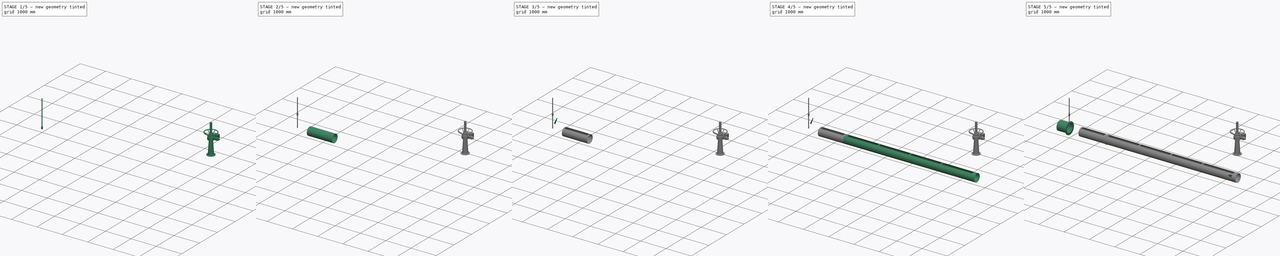
[diagram: build sequence overview — one tinted view per stage of 5, left to right]
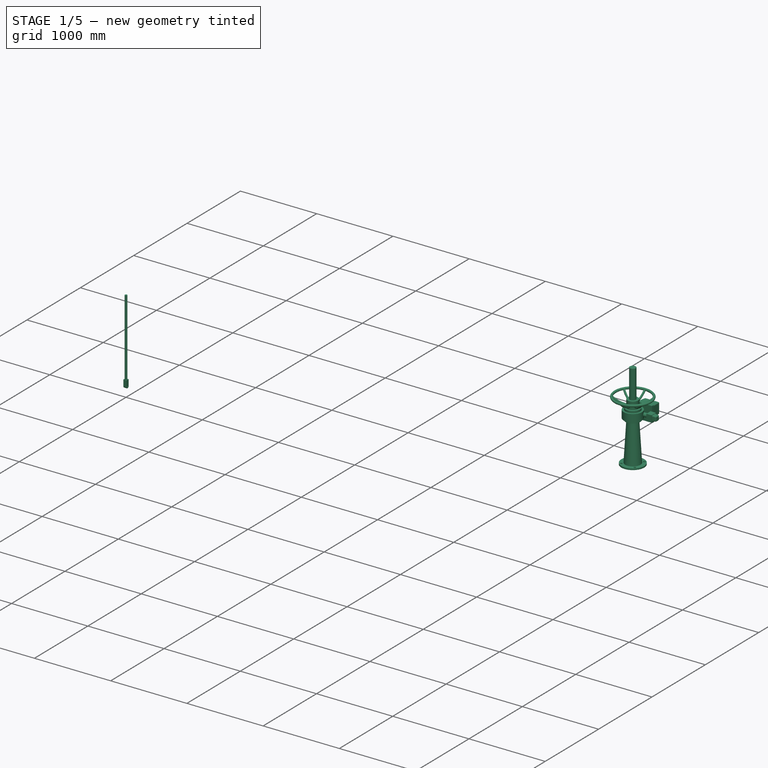
[diagram: stage 1 of 5 — iso view after this stage's code; geometry added in this stage tinted green]
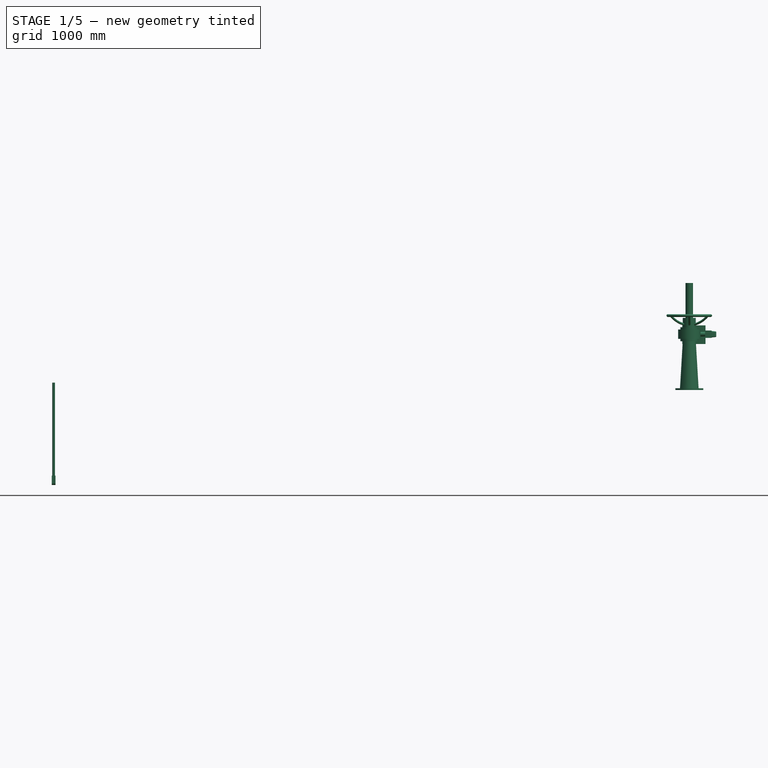
[diagram: stage 1 of 5 — front view after this stage's code; geometry added in this stage tinted green]
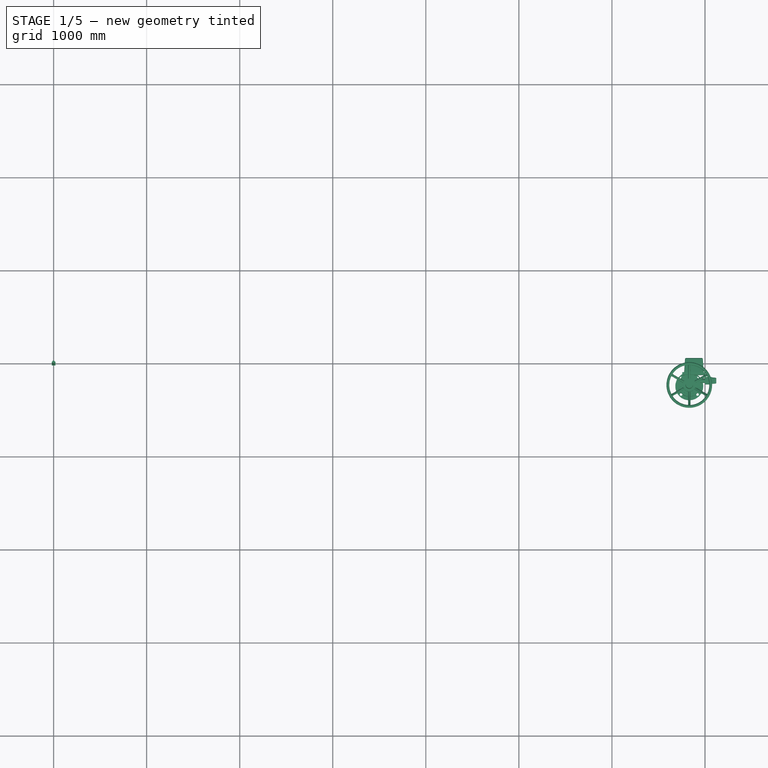
[diagram: stage 1 of 5 — top view after this stage's code; geometry added in this stage tinted green]
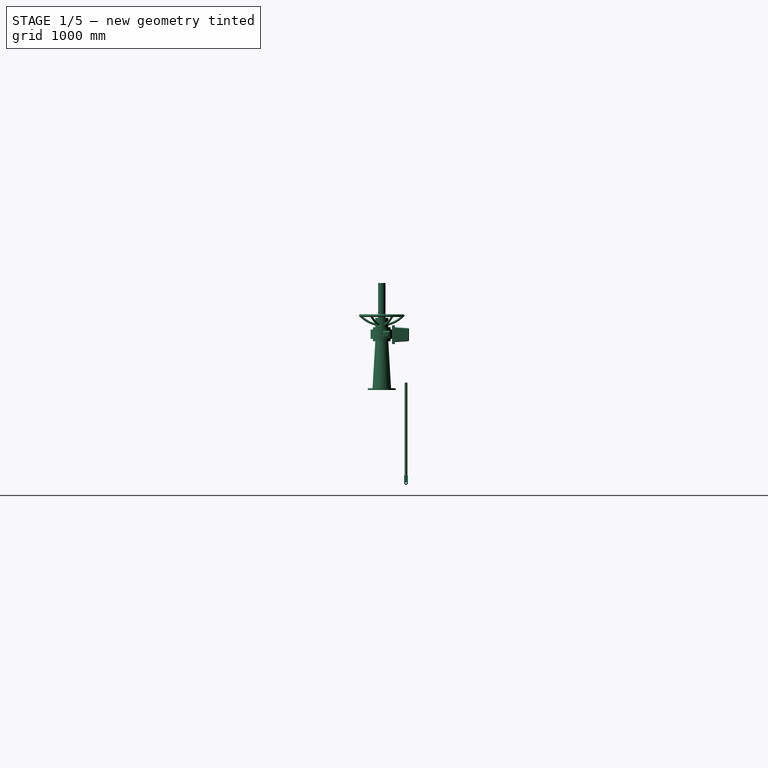
[diagram: stage 1 of 5 — right view after this stage's code; geometry added in this stage tinted green]
FCSTD DOCUMENT  (FreeCAD 1.0R39109 (Git))
Label: pipeSkimmer
License: All rights reserved
LicenseURL: https://en.wikipedia.org/wiki/All_rights_reserved
objects: Part::Extrusion×9, Sketcher::SketchObject×9, App::Part×8, Part::FeaturePython×6, Part::Cut×4, Part::Compound×2, Part::Revolution×1, Spreadsheet::Sheet×1, Part::Feature×1, Part::Cylinder×1
note: 41 computed .brp shape members not serialized (recipe doc carries the construction recipe); baked Part::Feature solids carry a one-line shape summary decoded from their .brp

FEATURE [Part::Feature] Part__Feature  label="電動トップハンドル_LTKD-01 v5"
  Placement = pos=(0,-389.711,-5.7e-14) rot=(1,0,0;1.5708rad)
  shape: bbox 555.2 x 557.2 x 1150 mm, 73 faces (baked)
FEATURE [App::Part] Part004  label="開閉台"
  Group = -> [Part__Feature]
  Origin = -> Origin004
  Placement = pos=(0,-400,0) rot=(0,0,1;3.14159rad)
FEATURE [Sketcher::SketchObject] Sketch006
  ArcFitTolerance = 0
  FullyConstrained = false
  MakeInternals = false
  Placement = pos=(0,0,0) rot=(0.57735,0.57735,0.57735;2.0944rad)
  sketch-geometry (5):
    g0: Circle CenterX=0 CenterY=0 CenterZ=0 NormalX=0 NormalY=0 NormalZ=1 AngleXU=0 Radius=7.5
    g1: ArcOfCircle CenterX=0 CenterY=0 CenterZ=0 NormalX=0 NormalY=0 NormalZ=1 AngleXU=0 Radius=20 StartAngle=3.14159 EndAngle=6.28319
    g2: LineSegment StartX=-20 StartY=9.32106e-06 StartZ=0 EndX=-20 EndY=80 EndZ=0
    g3: LineSegment StartX=-20 StartY=80 StartZ=0 EndX=20 EndY=80 EndZ=0
    g4: LineSegment StartX=20 StartY=80 StartZ=0 EndX=20 EndY=3.56439e-05 EndZ=0
  constraints (13):
    c: Coincident(g0,g-1)
    c: Coincident(g1,g0)
    c: Radius(g1) = 20
    c: Radius(g0) = 7.5
    c: Vertical(g2)
    c: Coincident(g2,g3)
    c: Horizontal(g3)
    c: Coincident(g3,g4)
    c: Vertical(g4)
    c: Coincident(g1,g4)
    c: Coincident(g1,g2)
    c: DistanceY(g-1,g3) = 80
    c: DistanceX(g3,g3) = 40
FEATURE [Part::Extrusion] Extrude006
  Base = -> Sketch006
  Dir = (1,0,0)
  DirMode = 2
  FaceMakerClass = Part::FaceMakerBullseye
  FaceMakerMode = 3
  LengthFwd = 40
  LengthRev = 0
  Solid = true
  Symmetric = true
FEATURE [App::Part] Part005  label="rod"
  Group = -> [Cut002,Clone,Sketch007,Sketch006,Sketch008,Extrude006,Extrude007,Extrude008]
  Origin = -> Origin005
  Placement = pos=(6831,-303,175) rot=(1,0,0;6.17882rad)
  expr: .Placement.Base.x = Spreadsheet.L0 - Spreadsheet.l2 + Spreadsheet.l4 - 19
FEATURE [Sketcher::SketchObject] Sketch009
  ArcFitTolerance = 0
  FullyConstrained = false
  MakeInternals = false
  Placement = pos=(0,0,0) rot=(0.57735,0.57735,0.57735;2.0944rad)
  sketch-geometry (5):
    g0: Circle CenterX=0 CenterY=0 CenterZ=0 NormalX=0 NormalY=0 NormalZ=1 AngleXU=0 Radius=7.5
    g1: ArcOfCircle CenterX=0 CenterY=0 CenterZ=0 NormalX=0 NormalY=0 NormalZ=1 AngleXU=0 Radius=20 StartAngle=3.14864 EndAngle=6.2925
    g2: LineSegment StartX=-19.9995 StartY=-0.141043 StartZ=0 EndX=-19.9995 EndY=80 EndZ=0
    g3: LineSegment StartX=-19.9995 StartY=80 StartZ=0 EndX=19.9991 EndY=80 EndZ=0
    g4: LineSegment StartX=19.9991 StartY=80 StartZ=0 EndX=19.9991 EndY=0.186233 EndZ=0
  constraints (12):
    c: Coincident(g0,g-1)
    c: Coincident(g1,g0)
    c: Vertical(g2)
    c: Coincident(g2,g3)
    c: Horizontal(g3)
    c: Coincident(g3,g4)
    c: Vertical(g4)
    c: Coincident(g1,g4)
    c: Coincident(g1,g2)
    c: Radius(g0) = 7.5
    c: Radius(g1) = 20
    c: DistanceY(g-1,g3) = 80
FEATURE [Part::Extrusion] Extrude009
  Base = -> Sketch009
  Dir = (1,0,0)
  DirMode = 2
  FaceMakerClass = Part::FaceMakerBullseye
  FaceMakerMode = 3
  LengthFwd = 9
  LengthRev = 0
  Solid = true
  Symmetric = true
FEATURE [Part::Cylinder] Cylinder  label="円柱"
  Angle = 360
  AttacherType = Attacher::AttachEngine3D
  FirstAngle = 0
  Height = 1000
  Placement = pos=(0,0,80) rot=(0,0,1;0rad)
  Radius = 15
  SecondAngle = 0
  expr: Height = Spreadsheet.h2
FEATURE [App::Part] Part006  label="rod002"
  Group = -> [Sketch009,Cylinder,Extrude009]
  Origin = -> Origin006
  Placement = pos=(6831,-250,682) rot=(0,0,1;0rad)
  expr: .Placement.Base.x = Spreadsheet.L0 - Spreadsheet.l2 + Spreadsheet.l4 - 19
FEATURE [Part::Compound] Compound003  label="開閉台01"
  Links = -> [Part004]
  Placement = pos=(6831,-250,1000) rot=(0.999778,-0.016584,0;2e-06rad)
  expr: .Placement.Base.x = Spreadsheet.L0 - Spreadsheet.l2 + Spreadsheet.l4 - 19
  expr: .Placement.Base.z = Spreadsheet.h2
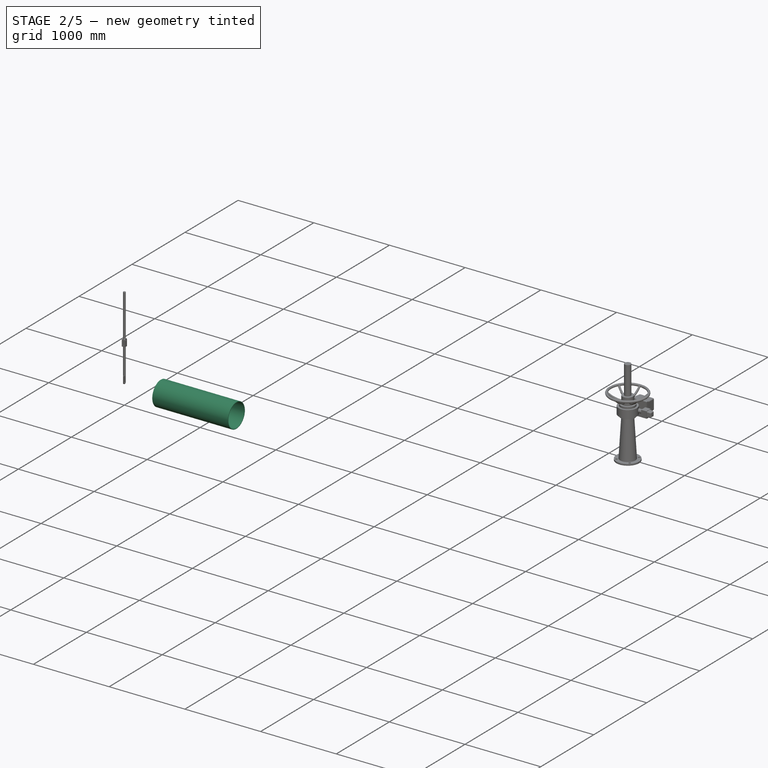
[diagram: stage 2 of 5 — iso view after this stage's code; geometry added in this stage tinted green]
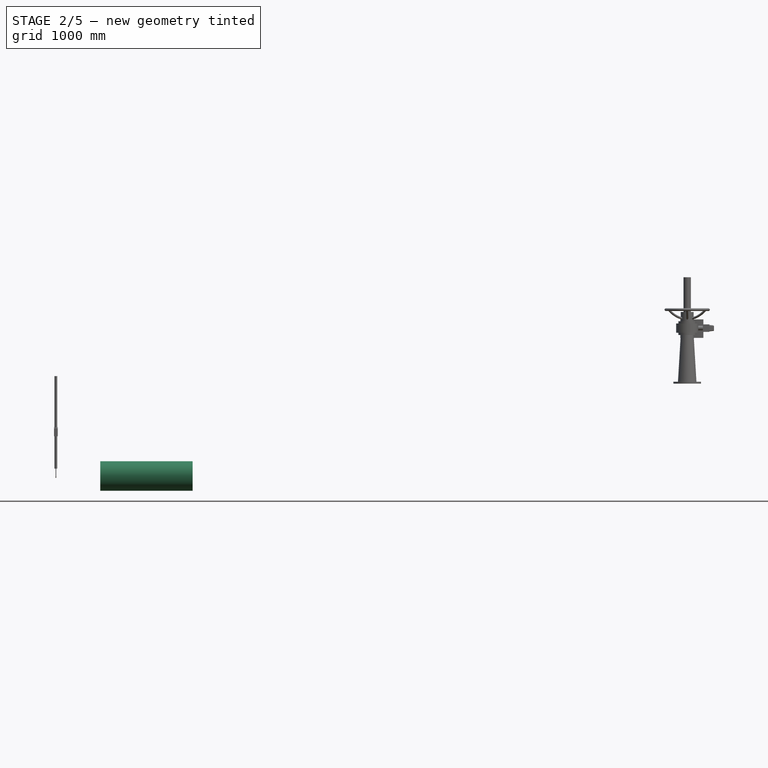
[diagram: stage 2 of 5 — front view after this stage's code; geometry added in this stage tinted green]
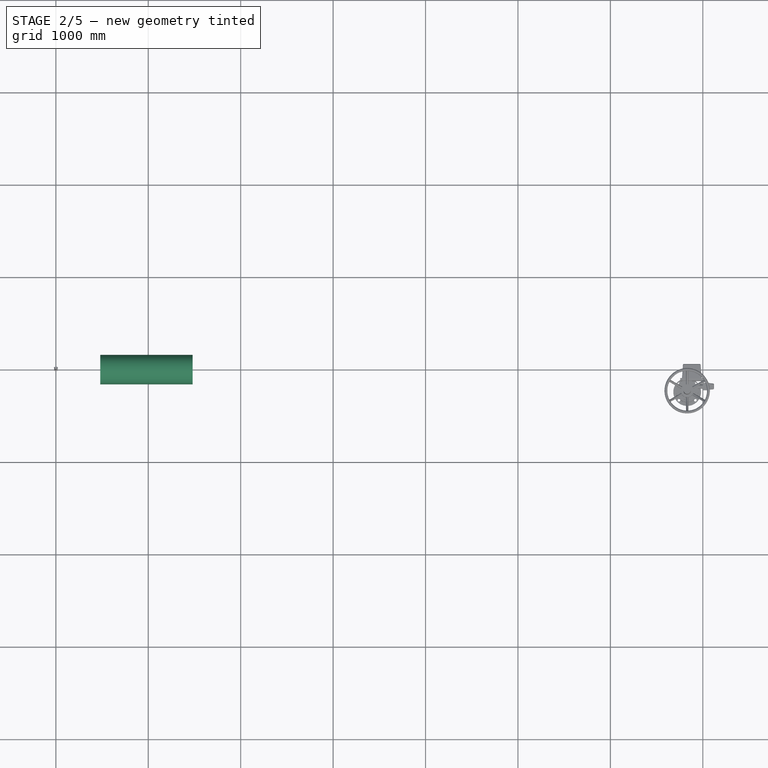
[diagram: stage 2 of 5 — top view after this stage's code; geometry added in this stage tinted green]
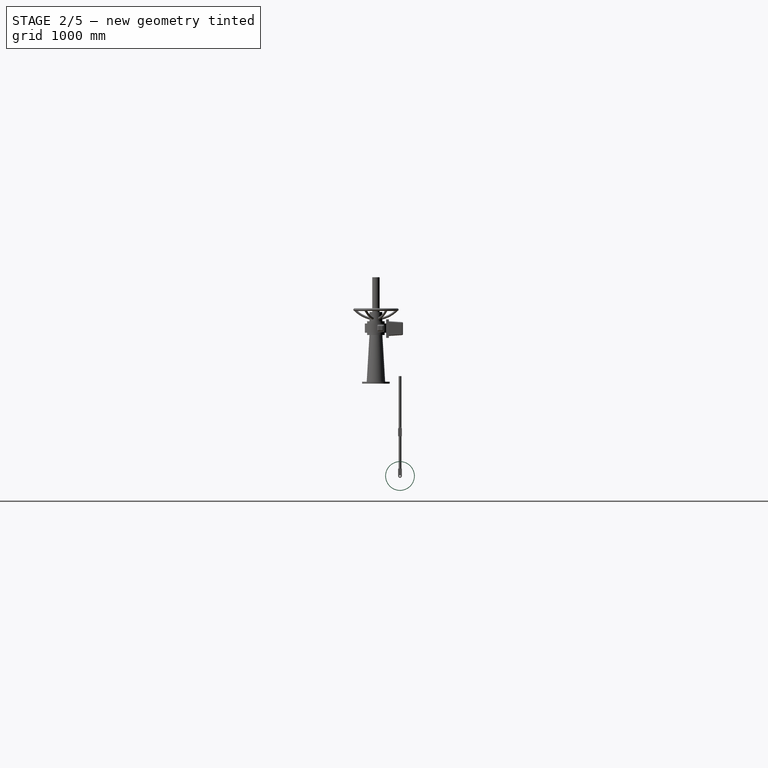
[diagram: stage 2 of 5 — right view after this stage's code; geometry added in this stage tinted green]
FEATURE [Sketcher::SketchObject] Sketch007
  ArcFitTolerance = 0
  ExternalGeometry = -> [Extrude006]
  FullyConstrained = false
  MakeInternals = false
  MapMode = 5
  Placement = pos=(0,-20,0) rot=(1,0,0;1.5708rad)
  sketch-geometry (4):
    g0: LineSegment StartX=-5 StartY=-25.0355 StartZ=0 EndX=5 EndY=-25.0355 EndZ=0
    g1: LineSegment StartX=5 StartY=-25.0355 StartZ=0 EndX=5 EndY=60 EndZ=0
    g2: LineSegment StartX=5 StartY=60 StartZ=0 EndX=-5 EndY=60 EndZ=0
    g3: LineSegment StartX=-5 StartY=60 StartZ=0 EndX=-5 EndY=-25.0355 EndZ=0
  constraints (11):
    c: Coincident(g0,g1)
    c: Coincident(g1,g2)
    c: Coincident(g2,g3)
    c: Coincident(g3,g0)
    c: Horizontal(g0)
    c: Horizontal(g2)
    c: Vertical(g1)
    c: Vertical(g3)
    c: Distance(g1,g-3) = 20
    c: DistanceX(g0,g0) = 10
    c: DistanceX(g0,g-1) = 5
FEATURE [Part::Extrusion] Extrude007
  Base = -> Sketch007
  Dir = (0,-1,2e-16)
  DirMode = 2
  FaceMakerClass = Part::FaceMakerBullseye
  FaceMakerMode = 3
  LengthFwd = 50
  LengthRev = 0
  Reversed = true
  Solid = true
  Symmetric = false
FEATURE [Part::Cut] Cut002
  Base = -> Extrude006
  Tool = -> Extrude007
FEATURE [Sketcher::SketchObject] Sketch008
  ArcFitTolerance = 0
  FullyConstrained = true
  MakeInternals = false
  MapMode = 5
  Placement = pos=(0,0,80) rot=(0,0,1;0rad)
  sketch-geometry (1):
    g0: Circle CenterX=0 CenterY=0 CenterZ=0 NormalX=0 NormalY=0 NormalZ=1 AngleXU=0 Radius=15
  constraints (2):
    c: Coincident(g0,g-1)
    c: Radius(g0) = 15
FEATURE [Part::Extrusion] Extrude008
  Base = -> Sketch008
  Dir = (0,0,1)
  DirMode = 2
  FaceMakerClass = Part::FaceMakerBullseye
  FaceMakerMode = 3
  LengthFwd = 350
  LengthRev = 0
  Solid = true
  Symmetric = false
FEATURE [Part::FeaturePython] Clone  label="Cut003"  # Draft clone (typed FeaturePython)
  AttacherType = Attacher::AttachEngine3D
  Fuse = false
  Objects = -> [Cut002]
  Placement = pos=(-1.83e-13,0,510) rot=(0,1,0;3.14159rad)
  Scale = (1,1,1)
FEATURE [Part::FeaturePython] Straight_tube001  # WARN: FeaturePython — macro-defined, semantics opaque (R4)
  L = 1000
  Placement = pos=(1480,0,0) rot=(0,0,1;3.14159rad)
  dia = 16
  fittings = 05_Straight pipe
  material = 0
  standard = 0
  expr: .Placement.Base.x = Spreadsheet.l4 - 320
  expr: L = Spreadsheet.l1
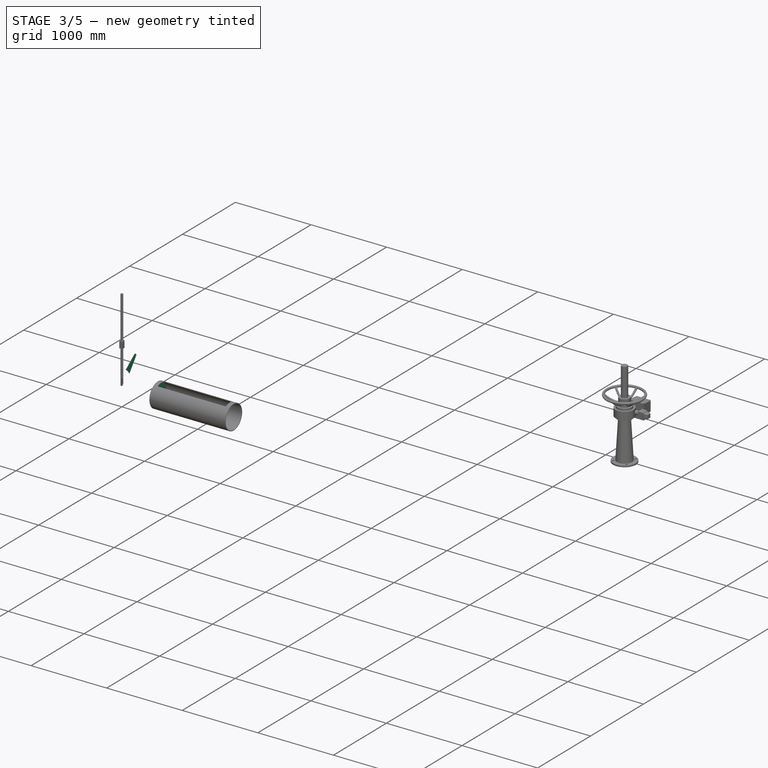
[diagram: stage 3 of 5 — iso view after this stage's code; geometry added in this stage tinted green]
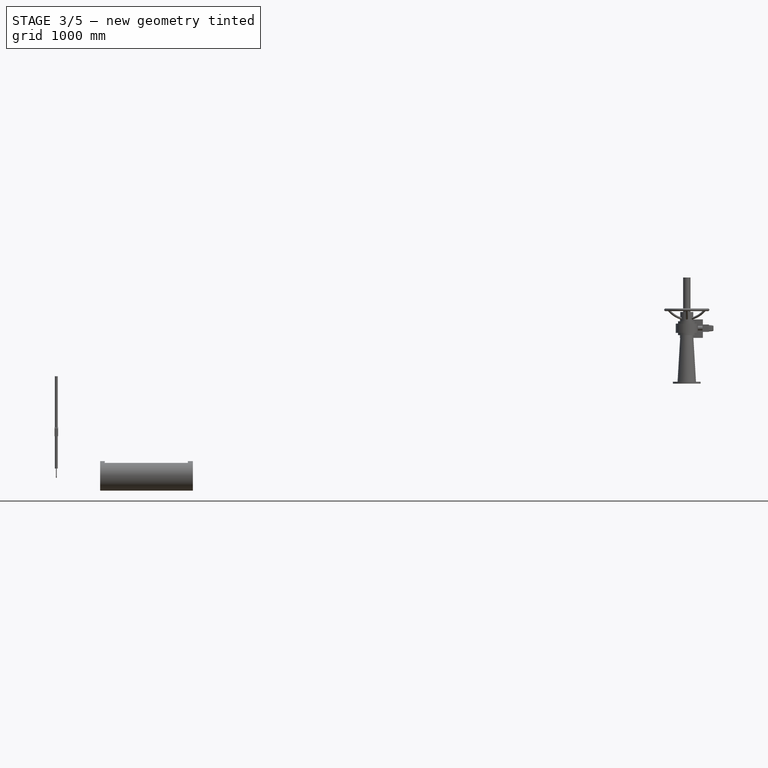
[diagram: stage 3 of 5 — front view after this stage's code; geometry added in this stage tinted green]
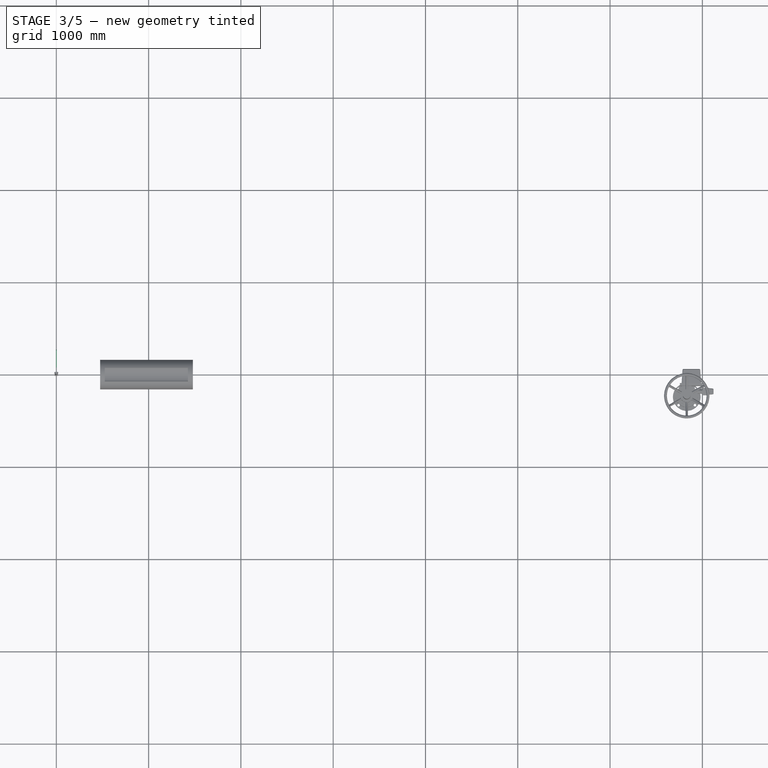
[diagram: stage 3 of 5 — top view after this stage's code; geometry added in this stage tinted green]
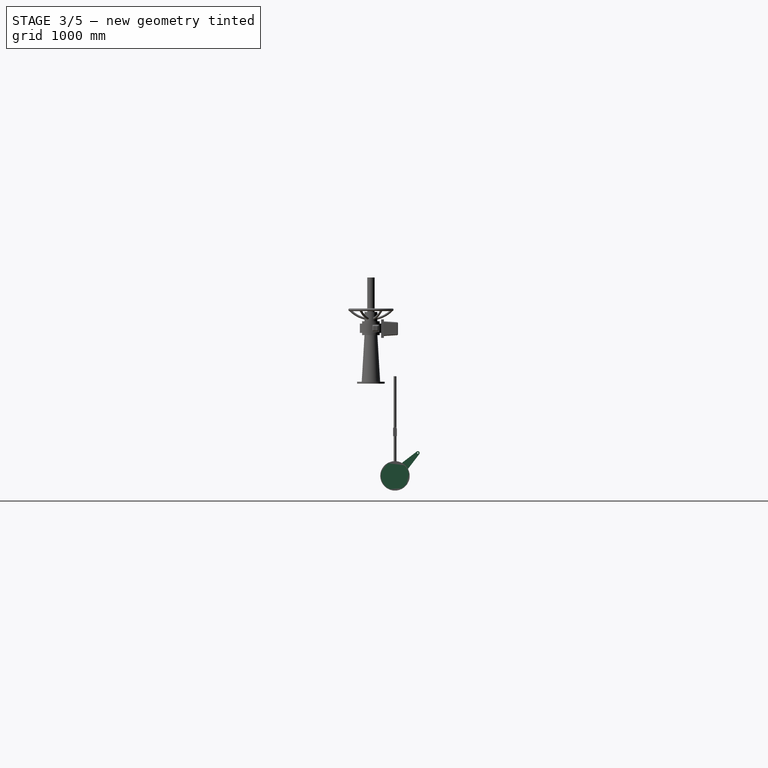
[diagram: stage 3 of 5 — right view after this stage's code; geometry added in this stage tinted green]
FEATURE [Sketcher::SketchObject] Sketch002
  ArcFitTolerance = 0
  FullyConstrained = false
  MakeInternals = false
  Placement = pos=(-30,0,0) rot=(0.57735,0.57735,0.57735;2.0944rad)
  expr: .Placement.Base.x = -30
  sketch-geometry (3):
    g0: LineSegment StartX=0 StartY=0 StartZ=0 EndX=-124.513 EndY=239.188 EndZ=0
    g1: LineSegment StartX=0 StartY=0 StartZ=0 EndX=124.513 EndY=239.188 EndZ=0
    g2: ArcOfCircle CenterX=0 CenterY=0 CenterZ=0 NormalX=0 NormalY=0 NormalZ=1 AngleXU=0 Radius=269.656 StartAngle=1.09083 EndAngle=2.05076
  constraints (7):
    c: Coincident(g0,g-1)
    c: Coincident(g1,g0)
    c: Coincident(g2,g1)
    c: Coincident(g2,g0)
    c: Coincident(g2,g0)
    c: Angle(g1,g0) = 0.959931
    c: Angle(g1,g-2) = 0.479966
FEATURE [Part::Extrusion] Extrude002
  Base = -> Sketch002
  Dir = (1,0,0)
  DirMode = 2
  FaceMakerClass = Part::FaceMakerBullseye
  FaceMakerMode = 3
  LengthFwd = 900
  LengthRev = 0
  Placement = pos=(1455,0,0) rot=(0,0,1;0rad)
  Reversed = true
  Solid = true
  Symmetric = false
  expr: .Placement.Base.x = -25 + Spreadsheet.l4 - 320
  expr: LengthFwd = Spreadsheet.l1 - 100
FEATURE [Sketcher::SketchObject] Sketch004
  ArcFitTolerance = 0
  FullyConstrained = true
  MakeInternals = false
  Placement = pos=(0,0,0) rot=(0.57735,0.57735,0.57735;2.0944rad)
  sketch-geometry (6):
    g0: LineSegment [constr] StartX=0 StartY=0 StartZ=0 EndX=247.487 EndY=247.487 EndZ=0
    g1: Circle CenterX=247.487 CenterY=247.487 CenterZ=0 NormalX=0 NormalY=0 NormalZ=1 AngleXU=0 Radius=7.5
    g2: ArcOfCircle CenterX=247.487 CenterY=247.487 CenterZ=0 NormalX=0 NormalY=0 NormalZ=1 AngleXU=0 Radius=20 StartAngle=5.62869 EndAngle=8.50848
    g3: LineSegment StartX=235.312 StartY=263.354 StartZ=0 EndX=74.8903 EndY=140.258 EndZ=0
    g4: LineSegment StartX=263.354 StartY=235.312 StartZ=0 EndX=140.258 EndY=74.8903 EndZ=0
    g5: ArcOfCircle CenterX=0 CenterY=0 CenterZ=0 NormalX=0 NormalY=0 NormalZ=1 AngleXU=0 Radius=159 StartAngle=0.490434 EndAngle=1.08036
  constraints (15):
    c: Coincident(g0,g-1)
    c: Angle(g-1,g0) = 0.785398
    c: Coincident(g1,g0)
    c: Radius(g1) = 7.5
    c: Coincident(g2,g1)
    c: Coincident(g5,g3)
    c: Coincident(g5,g4)
    c: Coincident(g5,g0)
    c: Tangent(g2,g3) = -1.5708
    c: Tangent(g2,g4) = 1.5708
    c: Equal(g4,g3)
    c: Radius(g5) = 159
    c: Angle(g3,g4) = 0.261799
    c: Distance(g5,g1) = 350
    c: Radius(g2) = 20
FEATURE [Part::Extrusion] Extrude004
  Base = -> Sketch004
  Dir = (1,0,0)
  DirMode = 2
  FaceMakerClass = Part::FaceMakerBullseye
  FaceMakerMode = 3
  LengthFwd = 6
  LengthRev = 0
  Placement = pos=(0,0,0) rot=(0,-0.977851,0.209302;0rad)
  Solid = true
  Symmetric = true
FEATURE [App::Part] Part003  label="arm"
  Group = -> [Sketch004,Extrude004]
  Origin = -> Origin003
  Placement = pos=(6520,0,0) rot=(1,0,0;1.8326rad)
  expr: .Placement.Base.x = Spreadsheet.L0 - Spreadsheet.l2 + Spreadsheet.l4 - 330
FEATURE [Sketcher::SketchObject] Sketch005
  ArcFitTolerance = 0
  FullyConstrained = false
  MakeInternals = false
  MapMode = 5
  Placement = pos=(781,0,0) rot=(0.57735,-0.57735,-0.57735;2.0944rad)
  expr: .Placement.Base.x = -Spreadsheet.l1 + Spreadsheet.l4 - 19
  sketch-geometry (1):
    g0: Circle CenterX=0 CenterY=0 CenterZ=0 NormalX=0 NormalY=0 NormalZ=1 AngleXU=0 Radius=159.25
  constraints (1):
    c: Coincident(g0,g-1)
FEATURE [Part::Extrusion] Extrude005
  Base = -> Sketch005
  Dir = (-1,0,0)
  DirMode = 2
  FaceMakerClass = Part::FaceMakerBullseye
  FaceMakerMode = 3
  LengthFwd = 6
  LengthRev = 0
  Placement = pos=(-300,0,0) rot=(0,0,1;0rad)
  Solid = true
  Symmetric = false
  expr: .Placement.Base.x = -300
FEATURE [Part::Cut] Cut003  label="Cut004"
  Base = -> Straight_tube001
  Refine = true
  Tool = -> Extrude002
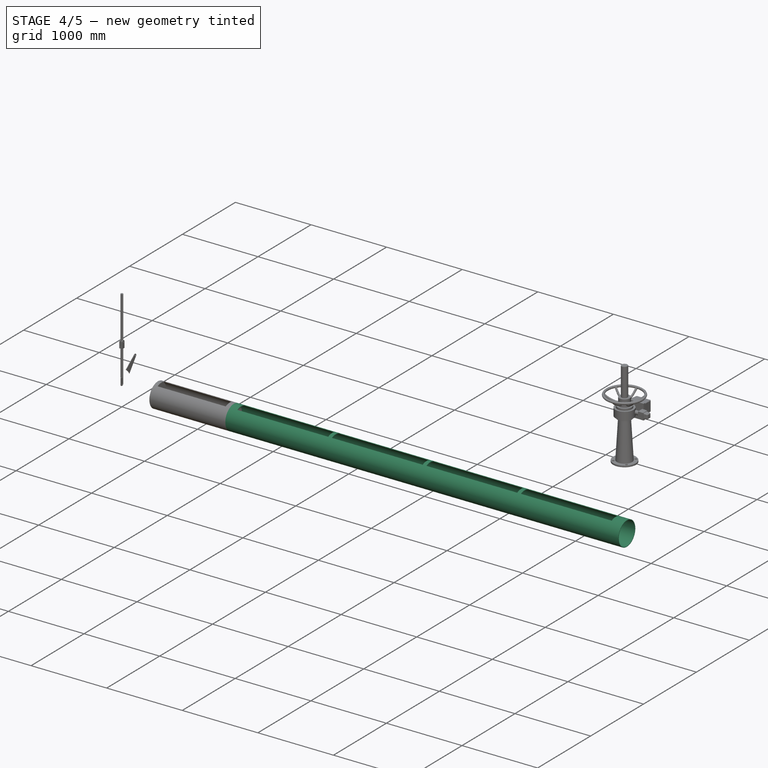
[diagram: stage 4 of 5 — iso view after this stage's code; geometry added in this stage tinted green]
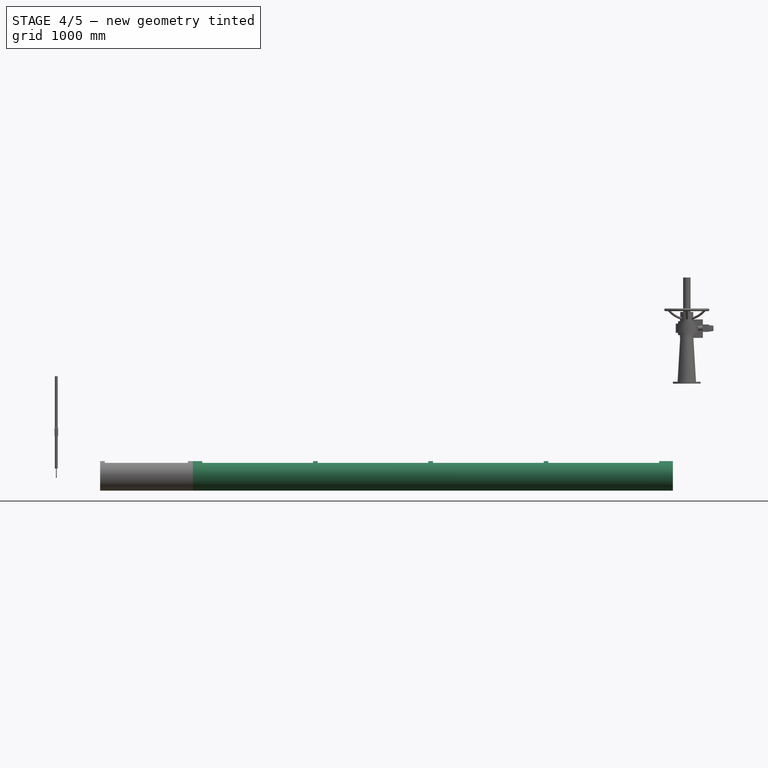
[diagram: stage 4 of 5 — front view after this stage's code; geometry added in this stage tinted green]
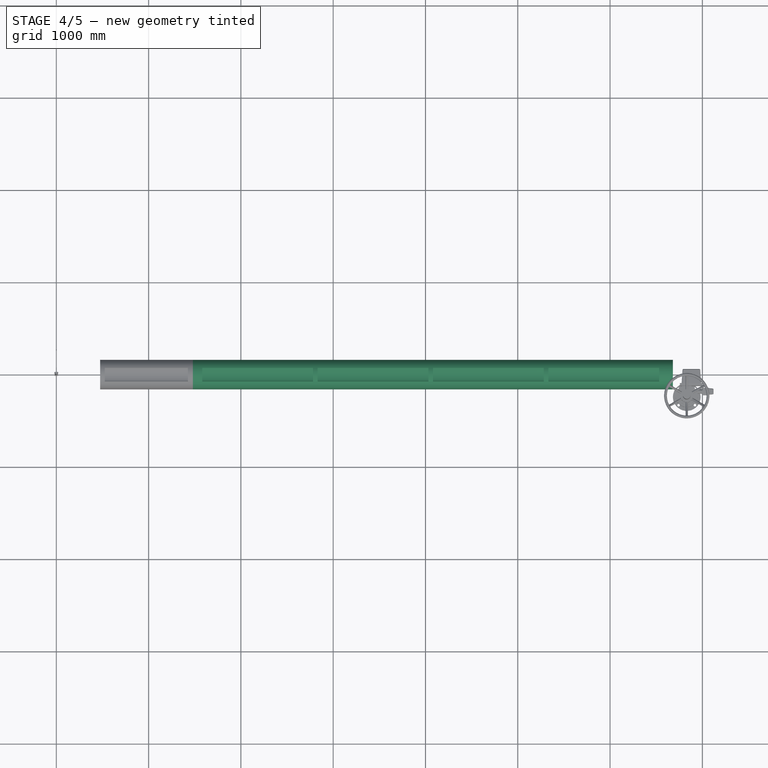
[diagram: stage 4 of 5 — top view after this stage's code; geometry added in this stage tinted green]
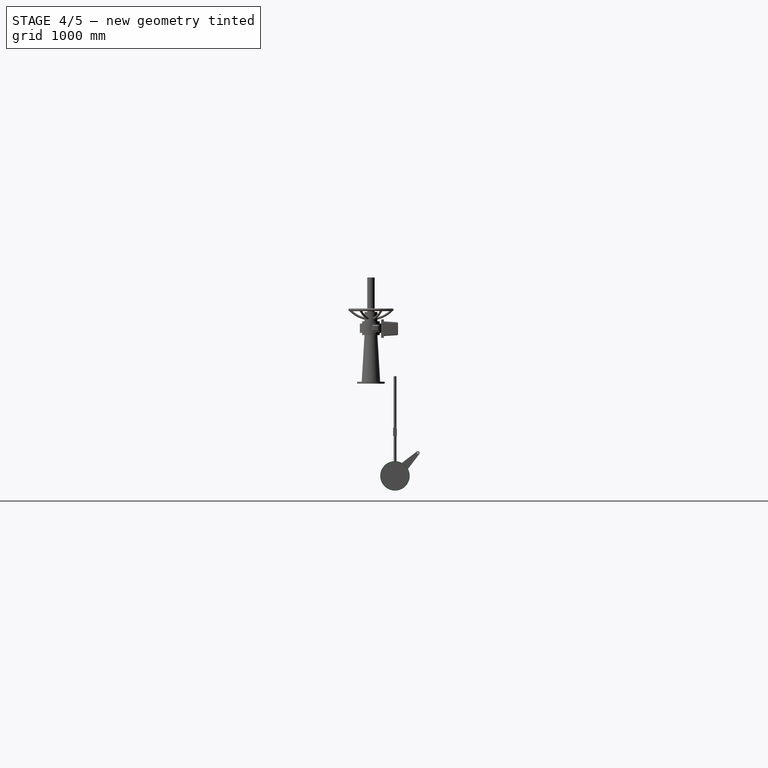
[diagram: stage 4 of 5 — right view after this stage's code; geometry added in this stage tinted green]
FEATURE [App::Part] Part  label="brg01"
  Group = -> [Ring,Extrude,Flange]
  Origin = -> Origin
  Placement = pos=(6981,-1.1983e-12,0) rot=(0,0,1;0rad)
  expr: .Placement.Base.x = Spreadsheet.L0 - Spreadsheet.l1 + Spreadsheet.l1 - 300 + Spreadsheet.l4 - 19
FEATURE [Part::FeaturePython] Straight_tube  # WARN: FeaturePython — macro-defined, semantics opaque (R4)
  L = 5200
  Placement = pos=(1480,0,0) rot=(0,0,1;0rad)
  dia = 16
  fittings = 05_Straight pipe
  material = 1
  standard = 1
  expr: .Placement.Base.x = Spreadsheet.l4 - 320
  expr: L = Spreadsheet.L0 - 300
FEATURE [Spreadsheet::Sheet] Spreadsheet  label="Spreadsheet_pipeSkimmer"
  cells = A2='tankDia  D0; B2(D0)=13000; A3='fullLength L0; B3(L0)=5500; A4='length       l1; B4(l1)=1000; A5='越流堰数 n0; B5(n0)=4; A6='越流堰長 l3; B6(l3)=1200; A7='開閉台  h2; B7(h2)=1000; A8='開閉台 位置 l2; B8(l2)=450; A9='軸受位置 l4; B9(l4)=1800
FEATURE [Sketcher::SketchObject] Sketch001
  ArcFitTolerance = 0
  FullyConstrained = false
  MakeInternals = false
  Placement = pos=(0,0,0) rot=(0.57735,0.57735,0.57735;2.0944rad)
  sketch-geometry (3):
    g0: LineSegment StartX=0 StartY=0 StartZ=0 EndX=114.659 EndY=220.257 EndZ=0
    g1: LineSegment StartX=0 StartY=0 StartZ=0 EndX=-114.659 EndY=220.257 EndZ=0
    g2: ArcOfCircle CenterX=0 CenterY=0 CenterZ=0 NormalX=0 NormalY=0 NormalZ=1 AngleXU=0 Radius=248.314 StartAngle=1.09083 EndAngle=2.05076
  constraints (7):
    c: Coincident(g-1,g0)
    c: Coincident(g1,g0)
    c: Coincident(g2,g0)
    c: Coincident(g2,g1)
    c: Coincident(g2,g0)
    c: Angle(g0,g-2) = 0.479966
    c: Angle(g0,g1) = 0.959931
FEATURE [Part::Extrusion] Extrude001
  Base = -> Sketch001
  Dir = (1,0,0)
  DirMode = 2
  FaceMakerClass = Part::FaceMakerBullseye
  FaceMakerMode = 3
  LengthFwd = 1200
  LengthRev = 0
  Placement = pos=(-200,0,0) rot=(0,0,1;0rad)
  Solid = true
  Symmetric = false
  expr: LengthFwd = Spreadsheet.l3
FEATURE [Part::FeaturePython] Array  # Draft array (typed FeaturePython)
  AlwaysSyncPlacement = false
  Angle = 360
  ArrayType = 0
  Axis = (0,0,1)
  Base = -> Extrude001
  Center = (0,0,0)
  Count = 4
  ExpandArray = false
  Fuse = false
  IntervalAxis = (0,0,0)
  IntervalX = (1250,0,0)
  IntervalY = (0,100,0)
  IntervalZ = (0,0,100)
  NumberCircles = 3
  NumberPolar = 5
  NumberX = 4
  NumberY = 1
  NumberZ = 1
  Placement = pos=(1781,0,0) rot=(0,0,1;0rad)
  PlacementList = 4 placements: arithmetic series from (-200,0,0) step (1250,0,0) to (3550,0,0)
  RadialDistance = 50
  ScaleList = (4) [(1,1,1),(1,1,1),(1,1,1),(1,1,1)]
  Symmetry = 1
  TangentialDistance = 25
  expr: .IntervalX.x = Spreadsheet.l3 + 50
  expr: .Placement.Base.x = Spreadsheet.l4 - 19
  expr: NumberX = Spreadsheet.n0
FEATURE [Part::Cut] Cut
  Base = -> Straight_tube
  Tool = -> Array
FEATURE [Part::Cut] Cut001
  Base = -> Cut
  Tool = -> Extrude002
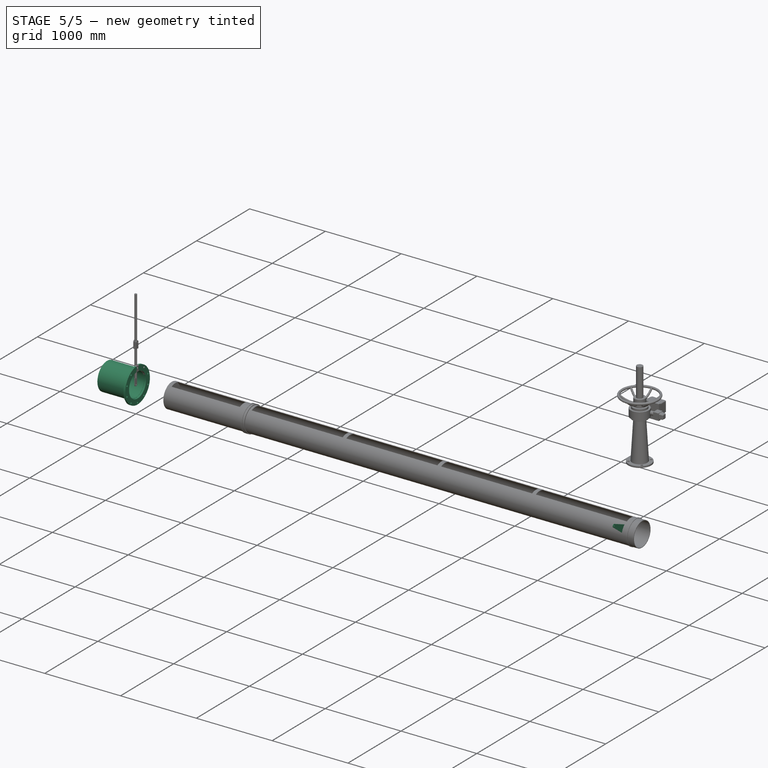
[diagram: stage 5 of 5 — iso view after this stage's code; geometry added in this stage tinted green]
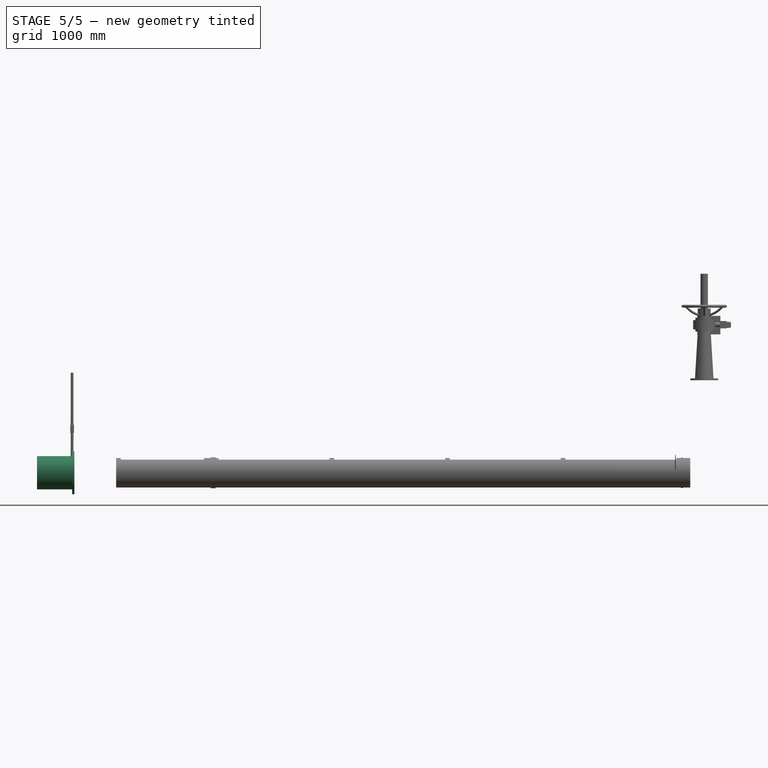
[diagram: stage 5 of 5 — front view after this stage's code; geometry added in this stage tinted green]
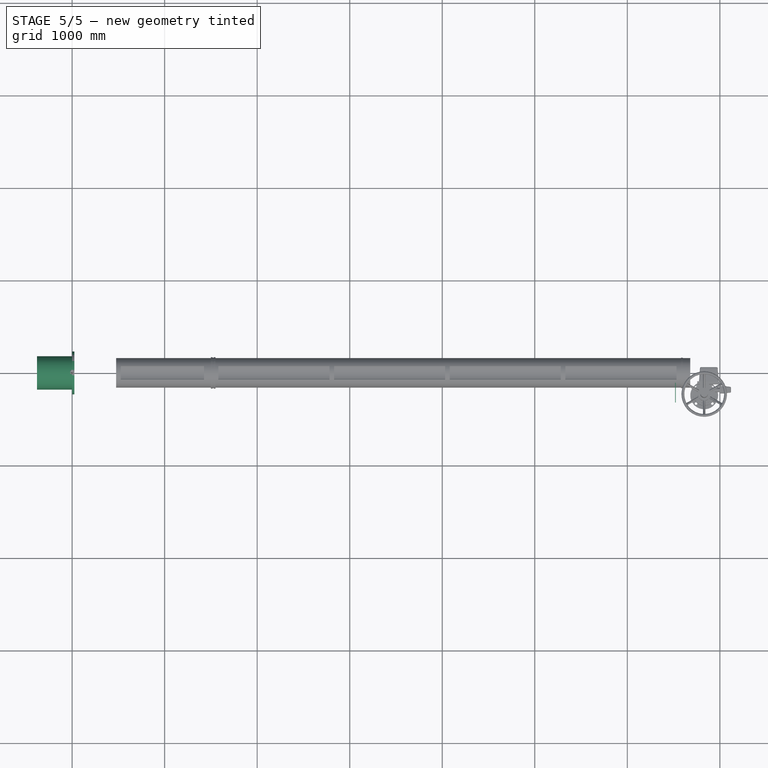
[diagram: stage 5 of 5 — top view after this stage's code; geometry added in this stage tinted green]
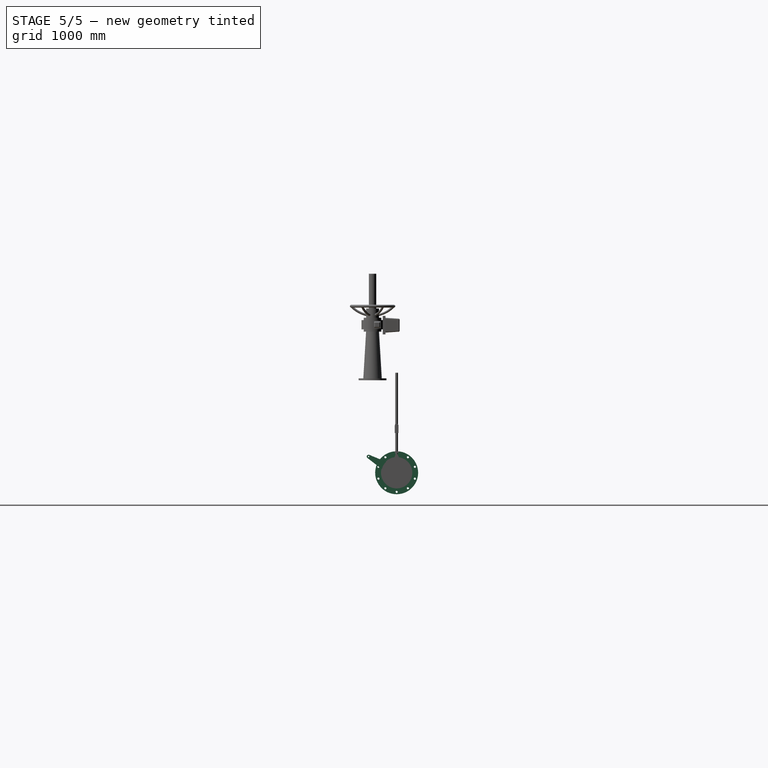
[diagram: stage 5 of 5 — right view after this stage's code; geometry added in this stage tinted green]
FEATURE [Part::FeaturePython] Flange  # WARN: FeaturePython — macro-defined, semantics opaque (R4)
  Placement = pos=(0,0,0) rot=(0.57735,0.57735,0.57735;2.0944rad)
  dia = 6
  fittings = 00_Flange
  material = 0
  standard = 1
FEATURE [Part::FeaturePython] Ring  # WARN: FeaturePython — macro-defined, semantics opaque (R4)
  D = 360
  Placement = pos=(0,0,0) rot=(0,1,0;1.5708rad)
  d = 315
  sface = 0
FEATURE [Part::Extrusion] Extrude
  Base = -> Ring
  Dir = (1,0,0)
  DirMode = 2
  FaceMakerClass = Part::FaceMakerBullseye
  FaceMakerMode = 3
  LengthFwd = 380
  LengthRev = 0
  Reversed = true
  Solid = true
  Symmetric = false
FEATURE [Sketcher::SketchObject] Sketch
  ArcFitTolerance = 0
  FullyConstrained = true
  MakeInternals = false
  Placement = pos=(0,0,0) rot=(1,0,0;1.5708rad)
  expr: Constraints[35] = Spreadsheet.L0 - 400
  sketch-geometry (12):
    g0: LineSegment StartX=5080 StartY=159.25 StartZ=0 EndX=5100 EndY=159.25 EndZ=0
    g1: LineSegment StartX=5100 StartY=159.25 StartZ=0 EndX=5100 EndY=164.25 EndZ=0
    g2: LineSegment StartX=5100 StartY=164.25 StartZ=0 EndX=5080 EndY=164.25 EndZ=0
    g3: LineSegment StartX=5080 StartY=164.25 StartZ=0 EndX=5080 EndY=159.25 EndZ=0
    g4: LineSegment StartX=0 StartY=159.25 StartZ=0 EndX=0 EndY=169.25 EndZ=0
    g5: LineSegment StartX=0 StartY=169.25 StartZ=0 EndX=19 EndY=169.25 EndZ=0
    g6: LineSegment StartX=19 StartY=169.25 StartZ=0 EndX=19 EndY=164.25 EndZ=0
    g7: LineSegment StartX=19 StartY=164.25 StartZ=0 EndX=31 EndY=164.25 EndZ=0
    g8: LineSegment StartX=31 StartY=164.25 StartZ=0 EndX=31 EndY=169.25 EndZ=0
    g9: LineSegment StartX=31 StartY=169.25 StartZ=0 EndX=50 EndY=169.25 EndZ=0
    g10: LineSegment StartX=50 StartY=169.25 StartZ=0 EndX=50 EndY=159.25 EndZ=0
    g11: LineSegment StartX=50 StartY=159.25 StartZ=0 EndX=0 EndY=159.25 EndZ=0
  constraints (36):
    c: Coincident(g0,g1)
    c: Coincident(g1,g2)
    c: Coincident(g2,g3)
    c: Coincident(g3,g0)
    c: Horizontal(g0)
    c: Horizontal(g2)
    c: Vertical(g1)
    c: Vertical(g3)
    c: DistanceY(g-1,g0) = 159.25
    c: DistanceY(g1,g1) = 5
    c: DistanceX(g2,g2) = 20
    c: Vertical(g4)
    c: Coincident(g4,g5)
    c: Horizontal(g5)
    c: Coincident(g5,g6)
    c: Vertical(g6)
    c: Coincident(g6,g7)
    c: Coincident(g7,g8)
    c: Coincident(g8,g9)
    c: Coincident(g9,g10)
    c: Coincident(g10,g11)
    c: Coincident(g11,g4)
    c: Horizontal(g11)
    c: Vertical(g10)
    c: Horizontal(g7)
    c: Horizontal(g9)
    c: Vertical(g8)
    c: DistanceY(g10,g10) = 10
    c: DistanceY(g7,g8) = 5
    c: Horizontal(g8,g5)
    c: DistanceX(g11,g11) = 50
    c: DistanceX(g7,g7) = 12
    c: DistanceX(g5,g5) = 19
    c: DistanceY(g-1,g4) = 159.25
    c: Vertical(g-1,g4)
    c: DistanceX(g-1,g0) = 5100
FEATURE [Part::Revolution] Revolve
  Angle = 360
  Axis = (1,0,0)
  Base = (0,0,0)
  FaceMakerClass = Part::FaceMakerBullseye
  Placement = pos=(1500,0,0) rot=(0,0,1;0rad)
  Solid = true
  Source = -> Sketch
  Symmetric = false
  expr: .Placement.Base.x = Spreadsheet.l4 - 300
FEATURE [App::Part] Part001  label="pipe"
  Group = -> [Sketch,Revolve,Part003,Extrude001,Extrude002,Cut001,Cut,Straight_tube,Array,Sketch001,Sketch002,Sketch005,Straight_tube001,Cut003,Extrude005]
  Origin = -> Origin001
FEATURE [Part::Compound] Compound001  label="pipe001"
  Links = -> [Part001]
  Placement = pos=(-7.28528e-06,0,0) rot=(0,-0.552174,0.703636;0rad)
FEATURE [App::Part] Part007  label="開閉台Assy"
  Group = -> [Part004,Compound003,Part005,Part006]
  Origin = -> Origin007
  Placement = pos=(-311,0,0) rot=(0,0,1;0rad)
FEATURE [App::Part] Part002  label="pipeSkimmer"
  Group = -> [Part001,Part,Spreadsheet,Compound001,Part007]
  Origin = -> Origin002
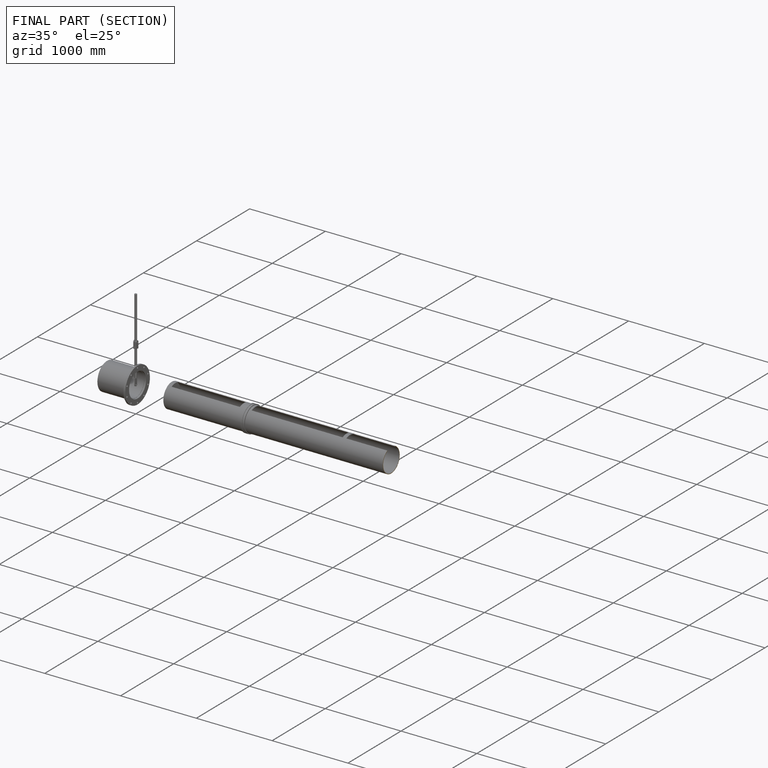
[diagram: finished part — half-section view (interior)]
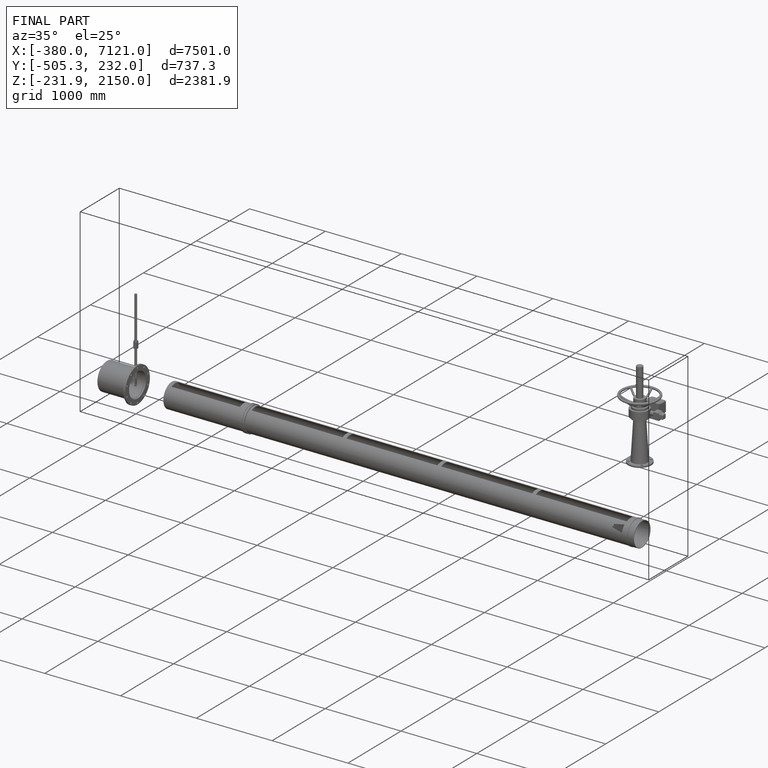
[diagram: finished part — iso view with bounding-box wireframe]
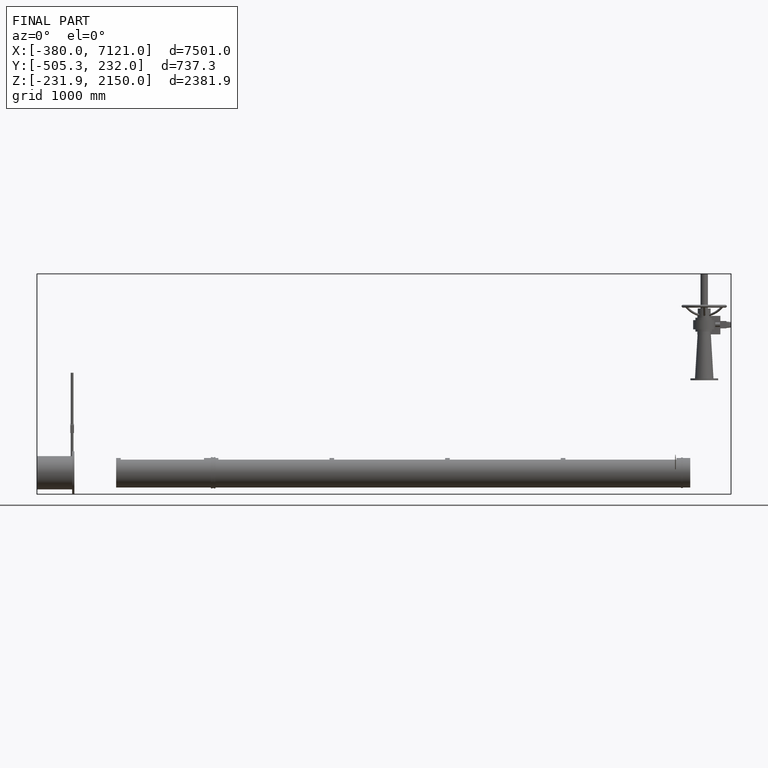
[diagram: finished part — front view with bounding-box wireframe]
